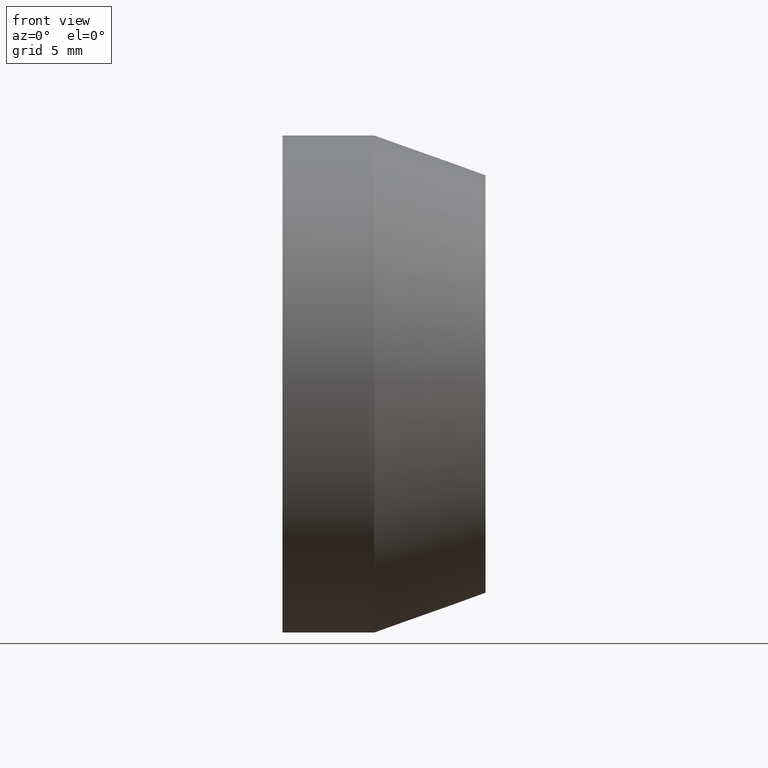
[diagram: clean part render]
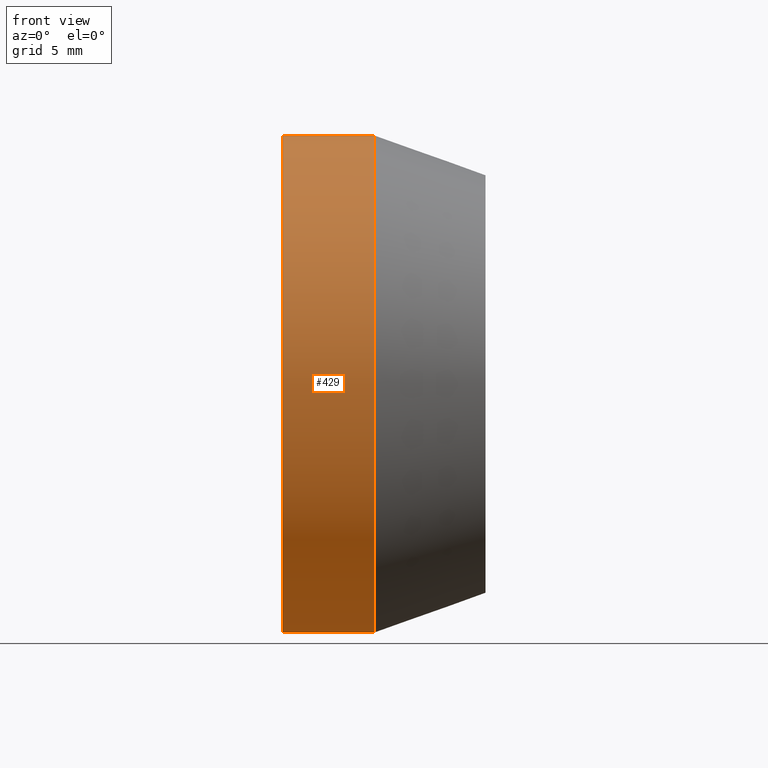
[diagram: same view with one face highlighted and labeled with its STEP entity id]
A machine part, front view. The second image highlights one B-rep face of the part: STEP entity #429.
In plain terms, the highlighted cylindrical surface (bore or boss wall) has radius 19 mm, axis along (1, 0, 0).
Its self-contained STEP definition (entity closure, byte-faithful):
#249=CARTESIAN_POINT('',(-9.097371556211970,11.111111049393836,0.0));
#250=VERTEX_POINT('',#249);
#251=CARTESIAN_POINT('',(-9.097371556211970,-7.888888950606166,0.0));
#252=DIRECTION('',(1.0,0.0,0.0));
#253=DIRECTION('',(0.0,1.0,0.0));
#254=AXIS2_PLACEMENT_3D('',#251,#252,#253);
#255=CIRCLE('',#254,19.0);
#256=EDGE_CURVE('',#250,#250,#255,.T.);
#403=CARTESIAN_POINT('',(-16.097371556211971,11.111111049393836,0.0));
#404=VERTEX_POINT('',#403);
#405=CARTESIAN_POINT('',(-16.097371556211971,-7.888888950606166,0.0));
#406=DIRECTION('',(1.0,0.0,0.0));
#407=DIRECTION('',(0.0,1.0,0.0));
#408=AXIS2_PLACEMENT_3D('',#405,#406,#407);
#409=CIRCLE('',#408,19.0);
#410=EDGE_CURVE('',#404,#404,#409,.T.);
#418=CARTESIAN_POINT('',(-12.597371556211970,-7.888888950606166,0.0));
#419=DIRECTION('',(1.0,0.0,0.0));
#420=DIRECTION('',(0.0,1.0,0.0));
#421=AXIS2_PLACEMENT_3D('',#418,#419,#420);
#422=CYLINDRICAL_SURFACE('',#421,19.0);
#423=ORIENTED_EDGE('',*,*,#256,.F.);
#424=EDGE_LOOP('',(#423));
#425=FACE_OUTER_BOUND('',#424,.T.);
#426=ORIENTED_EDGE('',*,*,#410,.T.);
#427=EDGE_LOOP('',(#426));
#428=FACE_BOUND('',#427,.T.);
#429=ADVANCED_FACE('',(#425,#428),#422,.T.);